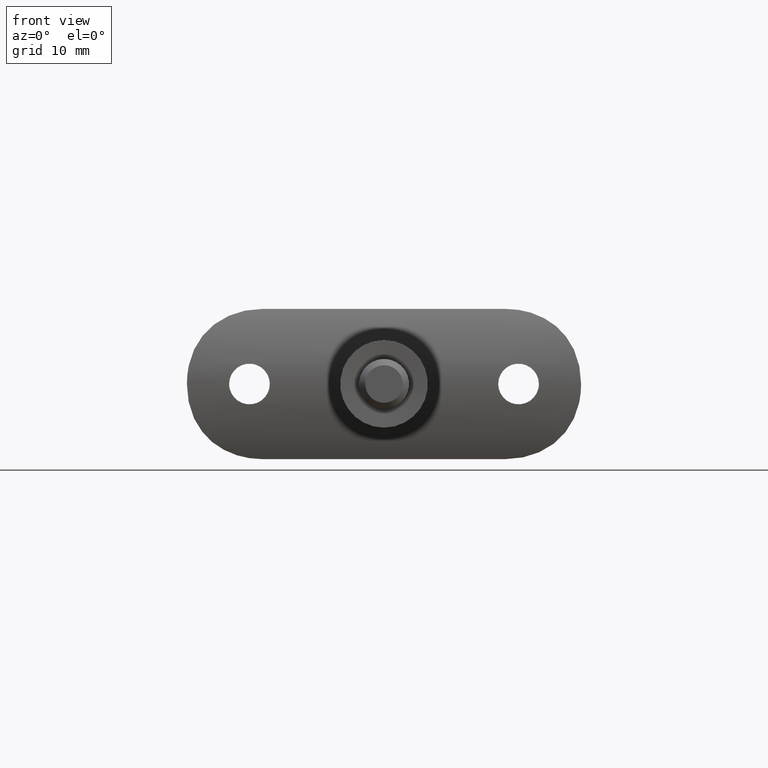
[diagram: clean part render]
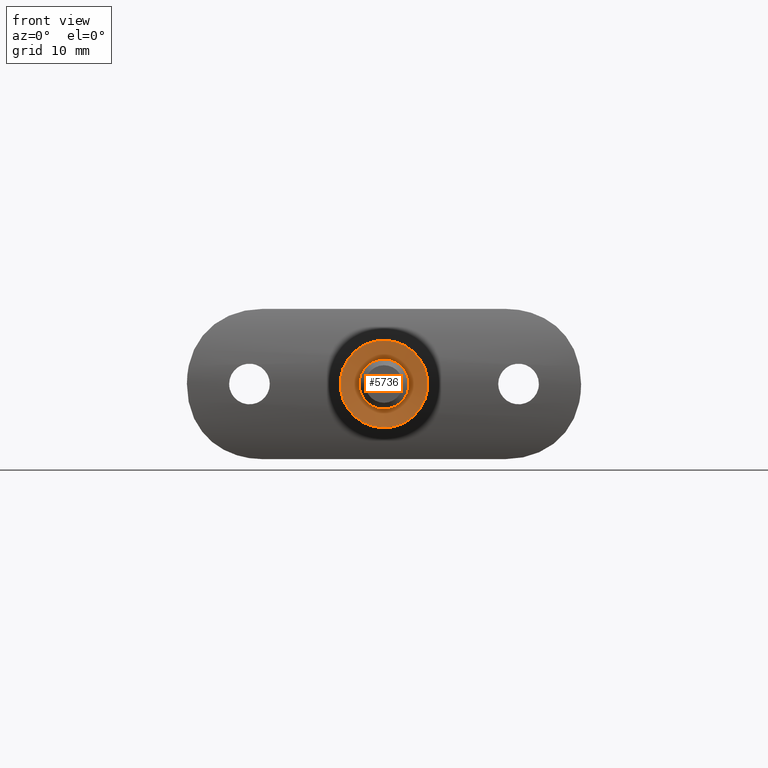
[diagram: same view with one face highlighted and labeled with its STEP entity id]
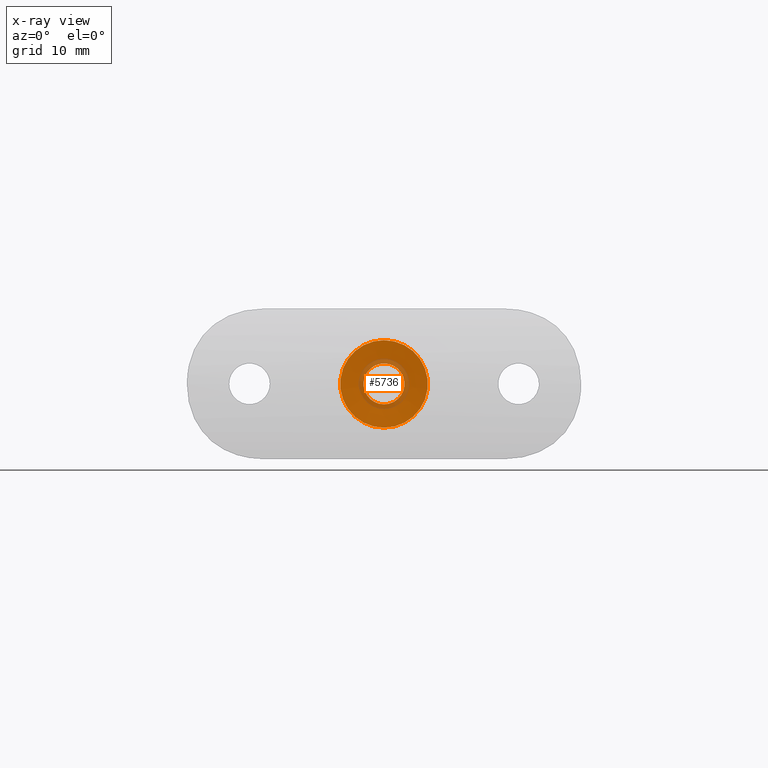
[diagram: x-ray of the same camera — body ghosted, the highlighted face saturated]
A machine part, front view. The second image highlights one B-rep face of the part: STEP entity #5736.
The next image is the same camera in x-ray: the body ghosted, the highlighted face saturated — about 14% of this face is hidden behind the body in this view.
In plain terms, the highlighted conical surface has half-angle 85 deg.
Its self-contained STEP definition (entity closure, byte-faithful):
#376 = EDGE_LOOP ( 'NONE', ( #13763 ) ) ;
#1590 = DIRECTION ( 'NONE',  ( -0.0000000000000000000, -1.000000000000000000, -0.0000000000000000000 ) ) ;
#1746 = EDGE_CURVE ( 'NONE', #12533, #12533, #4283, .T. ) ;
#2804 = CARTESIAN_POINT ( 'NONE',  ( 0.0000000000000000000, 0.0000000000000000000, 0.0000000000000000000 ) ) ;
#4205 = VERTEX_POINT ( 'NONE', #8739 ) ;
#4233 = CARTESIAN_POINT ( 'NONE',  ( 0.0000000000000000000, 0.3261762033592886500, 0.0000000000000000000 ) ) ;
#4283 = CIRCLE ( 'NONE', #14751, 3.271788935686912300 ) ;
#5140 = FACE_OUTER_BOUND ( 'NONE', #11491, .T. ) ;
#5736 = ADVANCED_FACE ( 'NONE', ( #5140, #12930 ), #12557, .F. ) ;
#7245 = EDGE_CURVE ( 'NONE', #4205, #4205, #11616, .T. ) ;
#7353 = AXIS2_PLACEMENT_3D ( 'NONE', #4233, #14674, #7709 ) ;
#7709 = DIRECTION ( 'NONE',  ( 0.0000000000000000000, 0.0000000000000000000, -1.000000000000000000 ) ) ;
#8739 = CARTESIAN_POINT ( 'NONE',  ( 0.0000000000000000000, 0.0000000000000000000, -7.000000000000000000 ) ) ;
#9124 = CARTESIAN_POINT ( 'NONE',  ( 0.0000000000000000000, 0.3261762033592886500, 0.0000000000000000000 ) ) ;
#9391 = AXIS2_PLACEMENT_3D ( 'NONE', #2804, #1590, #13291 ) ;
#11491 = EDGE_LOOP ( 'NONE', ( #14325 ) ) ;
#11616 = CIRCLE ( 'NONE', #9391, 7.000000000000000000 ) ;
#12533 = VERTEX_POINT ( 'NONE', #14236 ) ;
#12557 = CONICAL_SURFACE ( 'NONE', #7353, 3.271788935686912300, 1.483529864195186600 ) ;
#12608 = DIRECTION ( 'NONE',  ( -0.0000000000000000000, -1.000000000000000000, -0.0000000000000000000 ) ) ;
#12930 = FACE_BOUND ( 'NONE', #376, .T. ) ;
#13291 = DIRECTION ( 'NONE',  ( 0.0000000000000000000, 0.0000000000000000000, -1.000000000000000000 ) ) ;
#13750 = DIRECTION ( 'NONE',  ( 0.0000000000000000000, 0.0000000000000000000, -1.000000000000000000 ) ) ;
#13763 = ORIENTED_EDGE ( 'NONE', *, *, #1746, .F. ) ;
#14236 = CARTESIAN_POINT ( 'NONE',  ( 0.0000000000000000000, 0.3261762033592886500, -3.271788935686912300 ) ) ;
#14325 = ORIENTED_EDGE ( 'NONE', *, *, #7245, .T. ) ;
#14674 = DIRECTION ( 'NONE',  ( -0.0000000000000000000, -1.000000000000000000, -0.0000000000000000000 ) ) ;
#14751 = AXIS2_PLACEMENT_3D ( 'NONE', #9124, #12608, #13750 ) ;